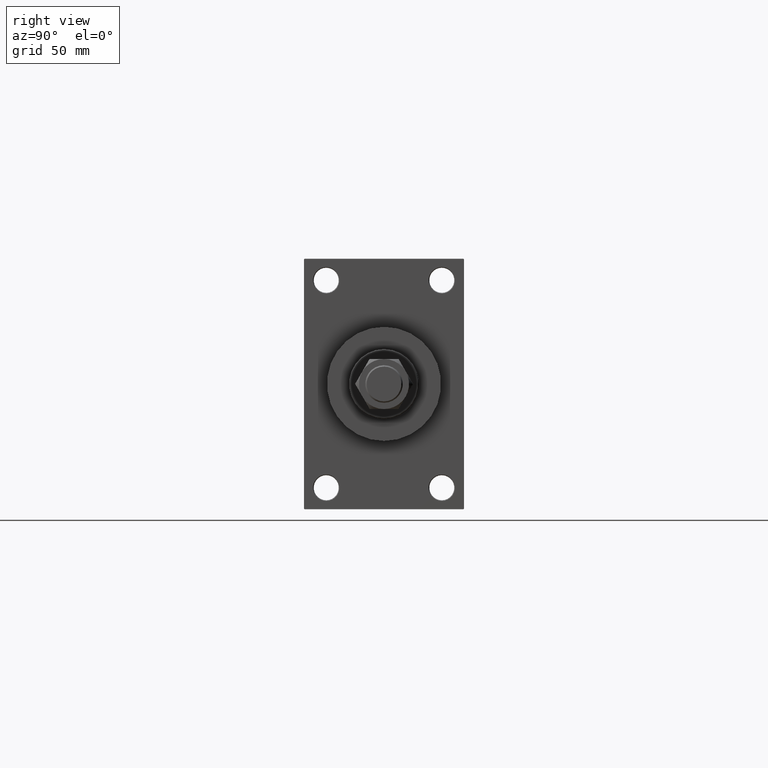
[diagram: clean part render]
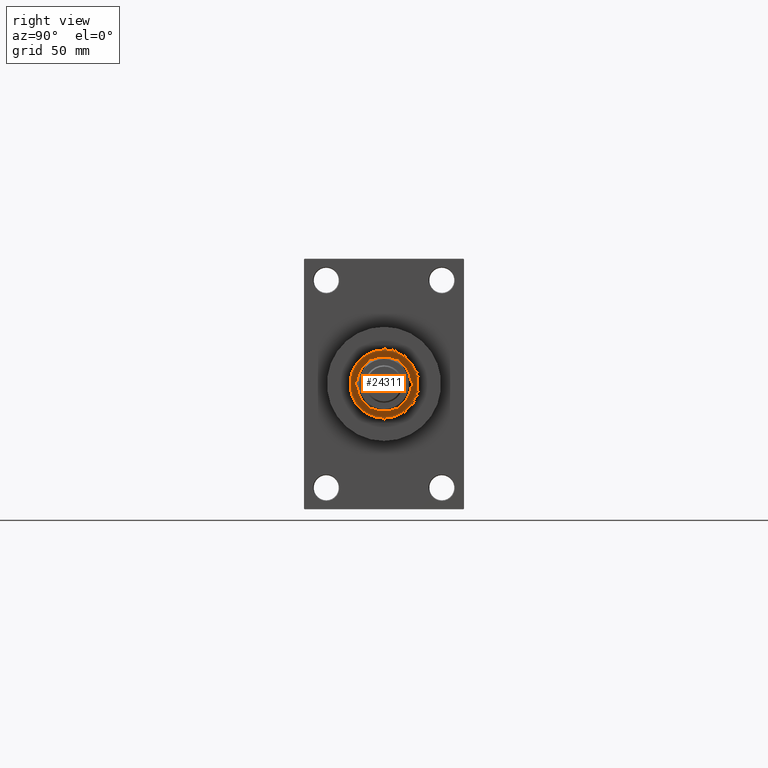
[diagram: same view with one face highlighted and labeled with its STEP entity id]
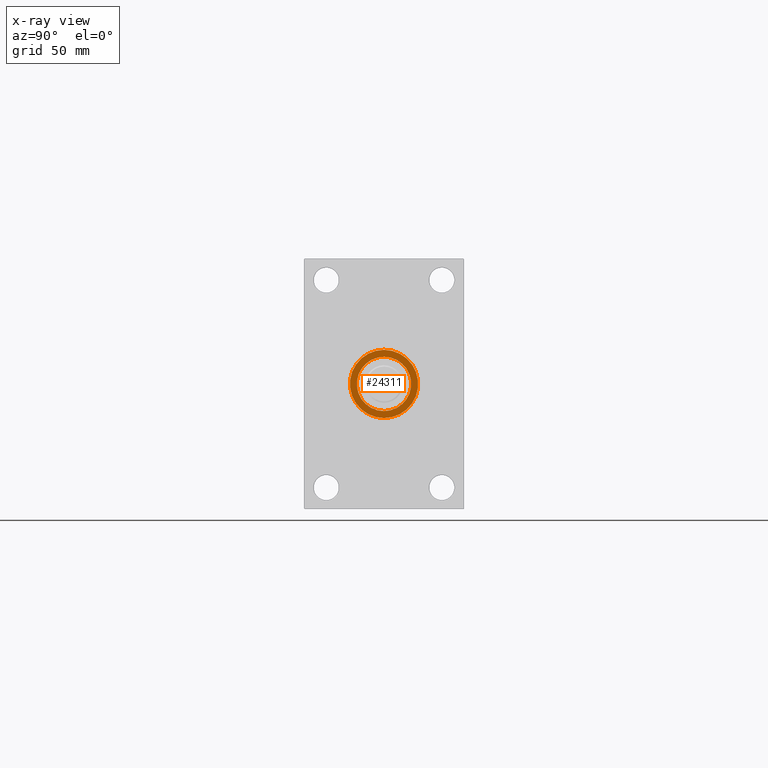
[diagram: x-ray of the same camera — body ghosted, the highlighted face saturated]
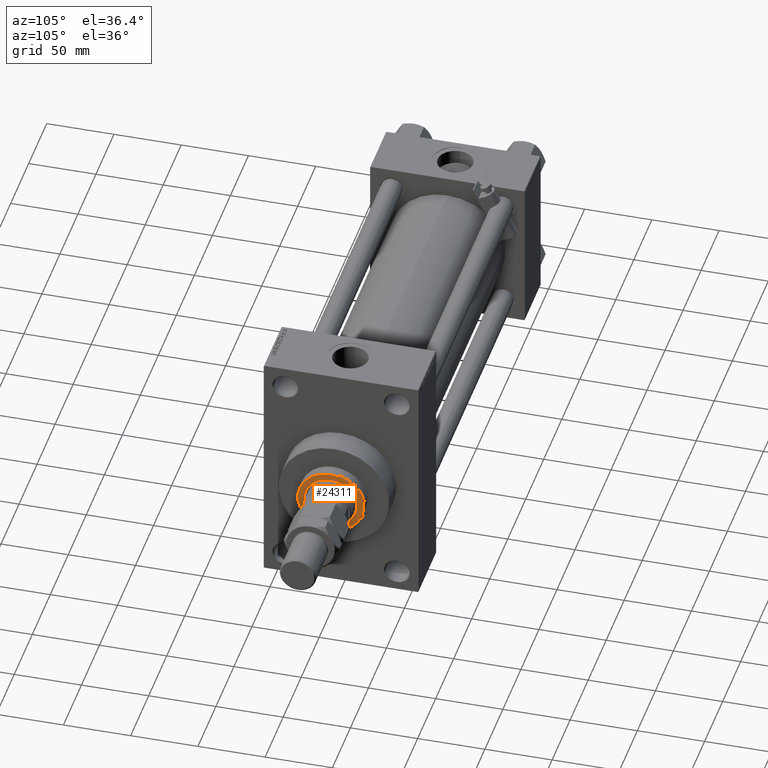
[diagram: same view with one face highlighted and labeled with its STEP entity id]
A machine part, right view. The second image highlights one B-rep face of the part: STEP entity #24311.
The next image is the same camera in x-ray: the body ghosted, the highlighted face saturated — about 0% of this face is hidden behind the body in this view.
A second angle (auxiliary view) of the same face is appended — the face is thin or edge-on in the first view.
In plain terms, the highlighted planar face has unit normal (1, -0, -0).
Its self-contained STEP definition (entity closure, byte-faithful):
#393 = CARTESIAN_POINT ( 'NONE',  ( 19.50000000000000000, 0.000000000000000000, 52.25999999999999801 ) ) ;
#510 = VERTEX_POINT ( 'NONE', #33787 ) ;
#892 = FACE_BOUND ( 'NONE', #11731, .T. ) ;
#1385 = DIRECTION ( 'NONE',  ( 1.000000000000000000, 0.000000000000000000, -0.000000000000000000 ) ) ;
#1823 = EDGE_LOOP ( 'NONE', ( #37021, #38334 ) ) ;
#1961 = CARTESIAN_POINT ( 'NONE',  ( 24.49999999999998224, 3.031000827889698072E-15, 52.25999999999999801 ) ) ;
#2249 = AXIS2_PLACEMENT_3D ( 'NONE', #7563, #35330, #42973 ) ;
#2909 = AXIS2_PLACEMENT_3D ( 'NONE', #14573, #22218, #30119 ) ;
#3047 = CIRCLE ( 'NONE', #2249, 24.49999999999998224 ) ;
#4218 = DIRECTION ( 'NONE',  ( 0.000000000000000000, 0.000000000000000000, 1.000000000000000000 ) ) ;
#5720 = AXIS2_PLACEMENT_3D ( 'NONE', #49295, #34275, #26112 ) ;
#6929 = VERTEX_POINT ( 'NONE', #28614 ) ;
#7278 = AXIS2_PLACEMENT_3D ( 'NONE', #36040, #4218, #1385 ) ;
#7563 = CARTESIAN_POINT ( 'NONE',  ( 0.000000000000000000, 0.000000000000000000, 52.25999999999999801 ) ) ;
#11296 = CARTESIAN_POINT ( 'NONE',  ( 0.000000000000000000, 0.000000000000000000, 52.25999999999999801 ) ) ;
#11731 = EDGE_LOOP ( 'NONE', ( #46989, #18792 ) ) ;
#12613 = EDGE_CURVE ( 'NONE', #31573, #510, #32206, .T. ) ;
#14573 = CARTESIAN_POINT ( 'NONE',  ( 0.000000000000000000, 0.000000000000000000, 52.25999999999999801 ) ) ;
#16425 = PLANE ( 'NONE',  #7278 ) ;
#18792 = ORIENTED_EDGE ( 'NONE', *, *, #26775, .F. ) ;
#18852 = VERTEX_POINT ( 'NONE', #393 ) ;
#19587 = EDGE_CURVE ( 'NONE', #510, #31573, #3047, .T. ) ;
#20491 = FACE_OUTER_BOUND ( 'NONE', #1823, .T. ) ;
#22218 = DIRECTION ( 'NONE',  ( 0.000000000000000000, 0.000000000000000000, 1.000000000000000000 ) ) ;
#24311 = ADVANCED_FACE ( 'NONE', ( #892, #20491 ), #16425, .T. ) ;
#26112 = DIRECTION ( 'NONE',  ( 1.000000000000000000, 0.000000000000000000, 0.000000000000000000 ) ) ;
#26775 = EDGE_CURVE ( 'NONE', #6929, #18852, #48050, .T. ) ;
#26836 = DIRECTION ( 'NONE',  ( 0.000000000000000000, 0.000000000000000000, 1.000000000000000000 ) ) ;
#27596 = DIRECTION ( 'NONE',  ( 1.000000000000000000, 0.000000000000000000, 0.000000000000000000 ) ) ;
#28614 = CARTESIAN_POINT ( 'NONE',  ( -19.50000000000000000, 2.388061258337338939E-15, 52.25999999999999801 ) ) ;
#28683 = EDGE_CURVE ( 'NONE', #18852, #6929, #35905, .T. ) ;
#30119 = DIRECTION ( 'NONE',  ( 1.000000000000000000, 0.000000000000000000, 0.000000000000000000 ) ) ;
#31573 = VERTEX_POINT ( 'NONE', #1961 ) ;
#32206 = CIRCLE ( 'NONE', #2909, 24.49999999999998224 ) ;
#33487 = AXIS2_PLACEMENT_3D ( 'NONE', #11296, #26836, #27596 ) ;
#33787 = CARTESIAN_POINT ( 'NONE',  ( -24.49999999999998224, 0.000000000000000000, 52.25999999999999801 ) ) ;
#34275 = DIRECTION ( 'NONE',  ( 0.000000000000000000, 0.000000000000000000, 1.000000000000000000 ) ) ;
#35330 = DIRECTION ( 'NONE',  ( 0.000000000000000000, 0.000000000000000000, 1.000000000000000000 ) ) ;
#35905 = CIRCLE ( 'NONE', #33487, 19.50000000000000000 ) ;
#36040 = CARTESIAN_POINT ( 'NONE',  ( 0.000000000000000000, 0.000000000000000000, 52.25999999999999801 ) ) ;
#37021 = ORIENTED_EDGE ( 'NONE', *, *, #19587, .T. ) ;
#38334 = ORIENTED_EDGE ( 'NONE', *, *, #12613, .T. ) ;
#42973 = DIRECTION ( 'NONE',  ( 1.000000000000000000, 0.000000000000000000, 0.000000000000000000 ) ) ;
#46989 = ORIENTED_EDGE ( 'NONE', *, *, #28683, .F. ) ;
#48050 = CIRCLE ( 'NONE', #5720, 19.50000000000000000 ) ;
#49295 = CARTESIAN_POINT ( 'NONE',  ( 0.000000000000000000, 0.000000000000000000, 52.25999999999999801 ) ) ;